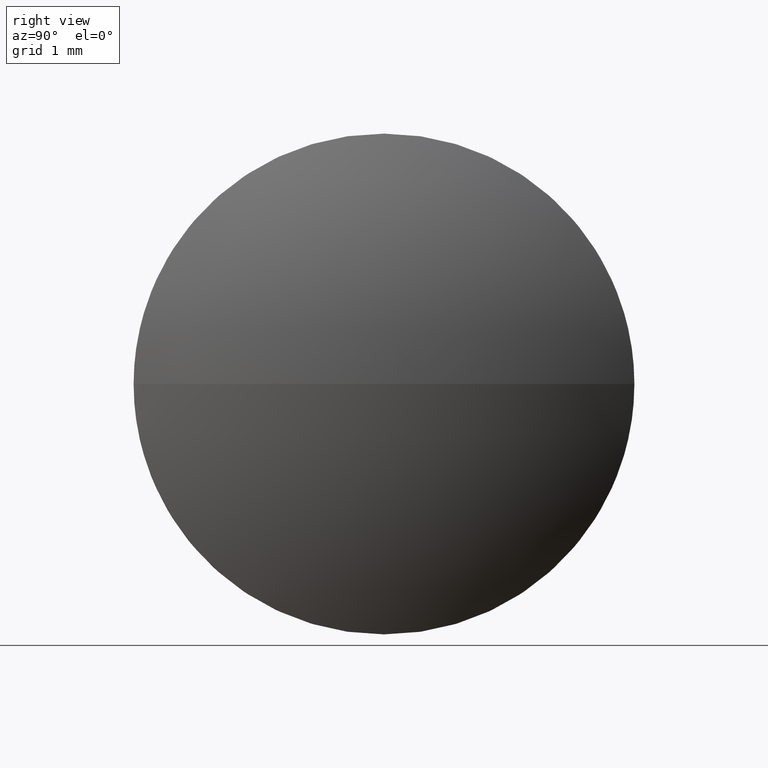
[diagram: clean part render]
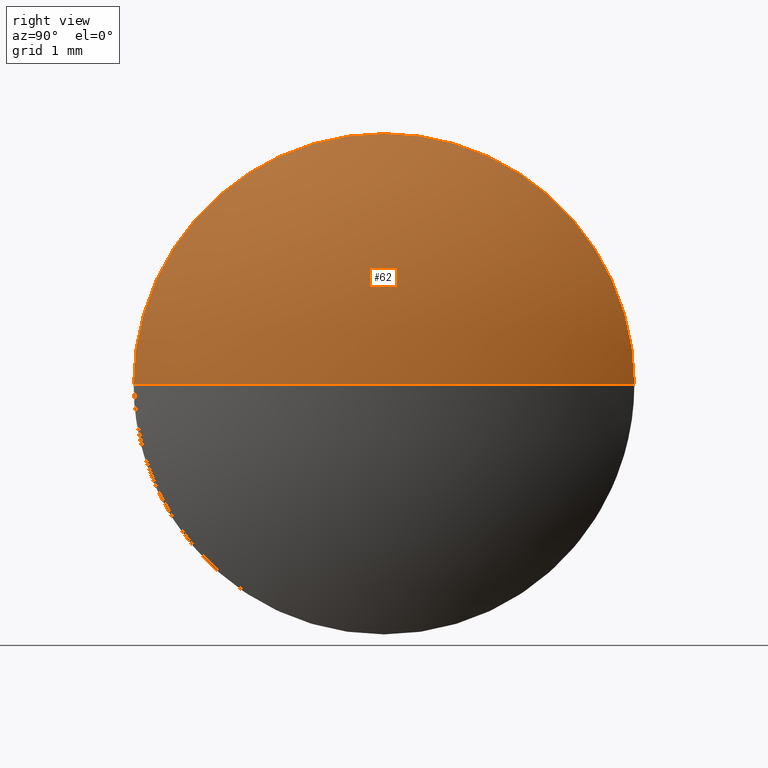
[diagram: same view with one face highlighted and labeled with its STEP entity id]
A machine part, right view. The second image highlights one B-rep face of the part: STEP entity #62.
In plain terms, the highlighted spherical surface has radius 6.4603 mm.
Its self-contained STEP definition (entity closure, byte-faithful):
#5 = EDGE_CURVE ( 'NONE', #141, #179, #73, .T. ) ;
#13 = AXIS2_PLACEMENT_3D ( 'NONE', #85, #31, #20 ) ;
#14 = CIRCLE ( 'NONE', #174, 3.150000000000003500 ) ;
#20 = DIRECTION ( 'NONE',  ( 0.0000000000000000000, 1.000000000000000000, 0.0000000000000000000 ) ) ;
#27 = DIRECTION ( 'NONE',  ( -1.000000000000000000, -0.0000000000000000000, -0.0000000000000000000 ) ) ;
#31 = DIRECTION ( 'NONE',  ( -0.0000000000000000000, 0.0000000000000000000, -1.000000000000000000 ) ) ;
#46 = CARTESIAN_POINT ( 'NONE',  ( 454.2972646101707100, 14.34250467615682500, 0.0000000000000000000 ) ) ;
#47 = CARTESIAN_POINT ( 'NONE',  ( 455.1172646101707100, 11.19250467615680300, 0.0000000000000000000 ) ) ;
#48 = EDGE_CURVE ( 'NONE', #179, #152, #14, .T. ) ;
#53 = AXIS2_PLACEMENT_3D ( 'NONE', #148, #149, #104 ) ;
#54 = ORIENTED_EDGE ( 'NONE', *, *, #48, .F. ) ;
#62 = ADVANCED_FACE ( 'NONE', ( #127 ), #77, .T. ) ;
#64 = DIRECTION ( 'NONE',  ( -1.000000000000000000, -0.0000000000000000000, -0.0000000000000000000 ) ) ;
#65 = AXIS2_PLACEMENT_3D ( 'NONE', #186, #64, #120 ) ;
#71 = DIRECTION ( 'NONE',  ( 0.0000000000000000000, 1.000000000000000000, 1.224646799147353200E-016 ) ) ;
#73 = CIRCLE ( 'NONE', #145, 6.460304878048838800 ) ;
#76 = CARTESIAN_POINT ( 'NONE',  ( 454.2972646101707100, 11.19250467615683000, 3.150000000000003500 ) ) ;
#77 = SPHERICAL_SURFACE ( 'NONE', #13, 6.460304878048838800 ) ;
#81 = DIRECTION ( 'NONE',  ( 0.0000000000000000000, 1.224646799147353200E-016, -1.000000000000000000 ) ) ;
#84 = ORIENTED_EDGE ( 'NONE', *, *, #5, .F. ) ;
#85 = CARTESIAN_POINT ( 'NONE',  ( 448.6569597321218900, 11.19250467615680300, 0.0000000000000000000 ) ) ;
#96 = CARTESIAN_POINT ( 'NONE',  ( 448.6569597321218900, 11.19250467615680300, 0.0000000000000000000 ) ) ;
#99 = VERTEX_POINT ( 'NONE', #46 ) ;
#104 = DIRECTION ( 'NONE',  ( 1.000000000000000000, 0.0000000000000000000, 0.0000000000000000000 ) ) ;
#120 = DIRECTION ( 'NONE',  ( 0.0000000000000000000, 0.0000000000000000000, 1.000000000000000000 ) ) ;
#127 = FACE_OUTER_BOUND ( 'NONE', #151, .T. ) ;
#139 = CIRCLE ( 'NONE', #53, 6.460304878048828100 ) ;
#140 = EDGE_CURVE ( 'NONE', #141, #99, #139, .T. ) ;
#141 = VERTEX_POINT ( 'NONE', #47 ) ;
#142 = CIRCLE ( 'NONE', #65, 3.150000000000003500 ) ;
#145 = AXIS2_PLACEMENT_3D ( 'NONE', #96, #81, #71 ) ;
#148 = CARTESIAN_POINT ( 'NONE',  ( 448.6569597321218900, 11.19250467615680300, 0.0000000000000000000 ) ) ;
#149 = DIRECTION ( 'NONE',  ( -0.0000000000000000000, 0.0000000000000000000, 1.000000000000000000 ) ) ;
#151 = EDGE_LOOP ( 'NONE', ( #84, #168, #166, #54 ) ) ;
#152 = VERTEX_POINT ( 'NONE', #76 ) ;
#165 = EDGE_CURVE ( 'NONE', #152, #99, #142, .T. ) ;
#166 = ORIENTED_EDGE ( 'NONE', *, *, #165, .F. ) ;
#168 = ORIENTED_EDGE ( 'NONE', *, *, #140, .T. ) ;
#170 = CARTESIAN_POINT ( 'NONE',  ( 454.2972646101707100, 11.19250467615683000, 0.0000000000000000000 ) ) ;
#174 = AXIS2_PLACEMENT_3D ( 'NONE', #170, #27, #180 ) ;
#178 = CARTESIAN_POINT ( 'NONE',  ( 454.2972646101707100, 8.042504676156809800, -3.857637417314155300E-016 ) ) ;
#179 = VERTEX_POINT ( 'NONE', #178 ) ;
#180 = DIRECTION ( 'NONE',  ( 0.0000000000000000000, 0.0000000000000000000, 1.000000000000000000 ) ) ;
#186 = CARTESIAN_POINT ( 'NONE',  ( 454.2972646101707100, 11.19250467615683000, 0.0000000000000000000 ) ) ;